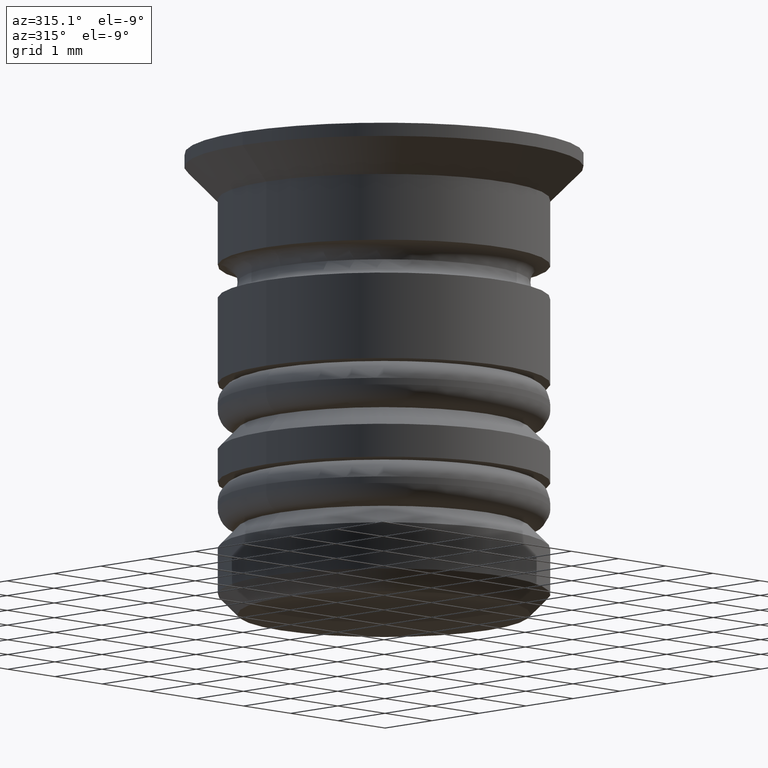
[diagram: clean part render]
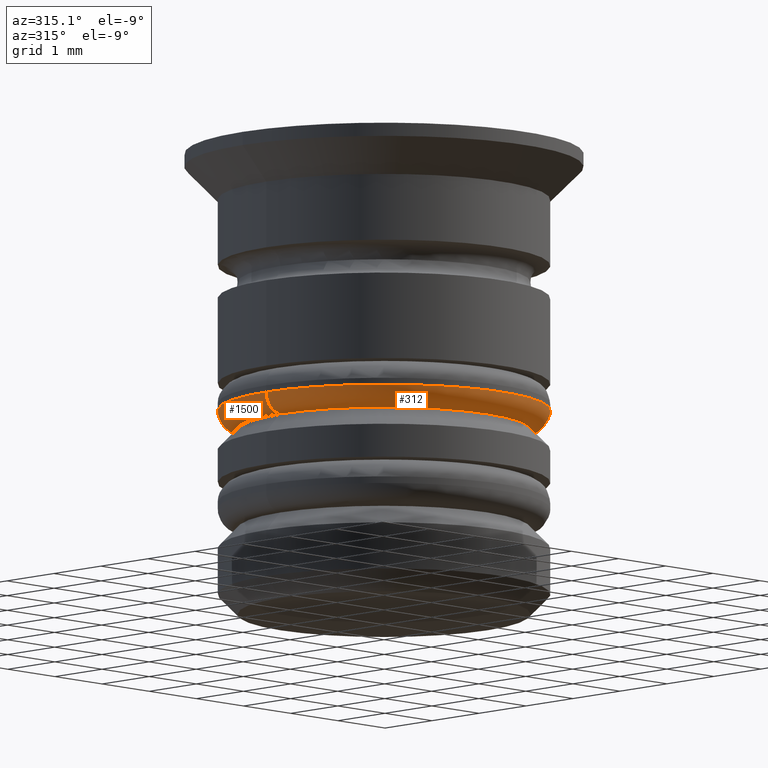
[diagram: same view with one multi-face feature highlighted, each face labeled with its STEP entity id]
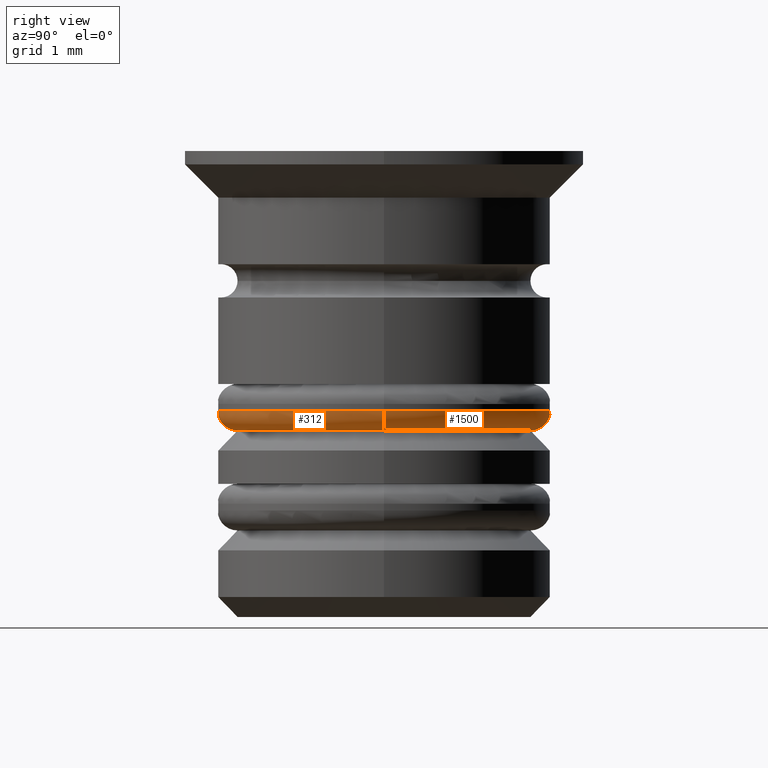
[diagram: same view with one multi-face feature highlighted, each face labeled with its STEP entity id]
A machine part, auxiliary view. The highlighted faces form ONE feature: a constant-radius fillet chain: 2 tangent blend faces with common blend radius 0.3 mm. The faces share edges in the B-rep.
A second angle (right view) of the same feature is appended — it is thin or edge-on in the first view.
Their STEP definitions:
[1] entity #1500 (Torus):
#54 = TOROIDAL_SURFACE ( 'NONE', #977, 2.200000000000001954, 0.2999999999999999889 ) ;
#76 = DIRECTION ( 'NONE',  ( 1.000000000000000000, 0.000000000000000000, 0.000000000000000000 ) ) ;
#101 = EDGE_CURVE ( 'NONE', #315, #788, #308, .T. ) ;
#265 = CIRCLE ( 'NONE', #1271, 0.2999999999999999334 ) ;
#301 = EDGE_CURVE ( 'NONE', #315, #1022, #1076, .T. ) ;
#308 = CIRCLE ( 'NONE', #368, 2.200000000000001954 ) ;
#314 = ORIENTED_EDGE ( 'NONE', *, *, #1418, .F. ) ;
#315 = VERTEX_POINT ( 'NONE', #1340 ) ;
#368 = AXIS2_PLACEMENT_3D ( 'NONE', #1212, #1202, #76 ) ;
#396 = DIRECTION ( 'NONE',  ( 0.000000000000000000, -1.000000000000000000, 0.000000000000000000 ) ) ;
#434 = ORIENTED_EDGE ( 'NONE', *, *, #301, .T. ) ;
#445 = AXIS2_PLACEMENT_3D ( 'NONE', #991, #702, #1695 ) ;
#527 = CARTESIAN_POINT ( 'NONE',  ( 2.200000000000001954, 0.000000000000000000, -3.900000000000010125 ) ) ;
#641 = DIRECTION ( 'NONE',  ( 0.000000000000000000, 0.000000000000000000, -1.000000000000000000 ) ) ;
#695 = CARTESIAN_POINT ( 'NONE',  ( 2.500000000000001776, 0.000000000000000000, -3.900000000000010125 ) ) ;
#702 = DIRECTION ( 'NONE',  ( 0.000000000000000000, 0.000000000000000000, 1.000000000000000000 ) ) ;
#749 = CARTESIAN_POINT ( 'NONE',  ( -2.200000000000001954, 2.694222958124179472E-16, -3.900000000000010125 ) ) ;
#788 = VERTEX_POINT ( 'NONE', #1604 ) ;
#841 = CARTESIAN_POINT ( 'NONE',  ( -2.500000000000001776, 3.061616997868385606E-16, -3.900000000000010125 ) ) ;
#908 = CARTESIAN_POINT ( 'NONE',  ( 0.000000000000000000, 0.000000000000000000, -3.900000000000010125 ) ) ;
#915 = EDGE_CURVE ( 'NONE', #788, #1736, #265, .T. ) ;
#934 = ORIENTED_EDGE ( 'NONE', *, *, #101, .F. ) ;
#977 = AXIS2_PLACEMENT_3D ( 'NONE', #908, #1457, #1312 ) ;
#991 = CARTESIAN_POINT ( 'NONE',  ( 0.000000000000000000, 0.000000000000000000, -3.900000000000010125 ) ) ;
#1022 = VERTEX_POINT ( 'NONE', #841 ) ;
#1033 = FACE_OUTER_BOUND ( 'NONE', #1623, .T. ) ;
#1076 = CIRCLE ( 'NONE', #1255, 0.2999999999999999334 ) ;
#1202 = DIRECTION ( 'NONE',  ( -0.000000000000000000, -0.000000000000000000, -1.000000000000000000 ) ) ;
#1212 = CARTESIAN_POINT ( 'NONE',  ( 0.000000000000000000, 0.000000000000000000, -4.200000000000009948 ) ) ;
#1255 = AXIS2_PLACEMENT_3D ( 'NONE', #749, #1734, #1326 ) ;
#1271 = AXIS2_PLACEMENT_3D ( 'NONE', #527, #396, #641 ) ;
#1312 = DIRECTION ( 'NONE',  ( 1.000000000000000000, 0.000000000000000000, 0.000000000000000000 ) ) ;
#1326 = DIRECTION ( 'NONE',  ( -1.000000000000000000, 1.224646799147353207E-16, 0.000000000000000000 ) ) ;
#1336 = CIRCLE ( 'NONE', #445, 2.500000000000001776 ) ;
#1340 = CARTESIAN_POINT ( 'NONE',  ( -2.200000000000001954, 2.877919977996282293E-16, -4.200000000000009948 ) ) ;
#1418 = EDGE_CURVE ( 'NONE', #1736, #1022, #1336, .T. ) ;
#1457 = DIRECTION ( 'NONE',  ( 0.000000000000000000, 0.000000000000000000, 1.000000000000000000 ) ) ;
#1500 = ADVANCED_FACE ( 'NONE', ( #1033 ), #54, .T. ) ;
#1604 = CARTESIAN_POINT ( 'NONE',  ( 2.200000000000001954, 0.000000000000000000, -4.200000000000009948 ) ) ;
#1623 = EDGE_LOOP ( 'NONE', ( #934, #434, #314, #1795 ) ) ;
#1695 = DIRECTION ( 'NONE',  ( 1.000000000000000000, 0.000000000000000000, 0.000000000000000000 ) ) ;
#1734 = DIRECTION ( 'NONE',  ( 1.224646799147353207E-16, 1.000000000000000000, -0.000000000000000000 ) ) ;
#1736 = VERTEX_POINT ( 'NONE', #695 ) ;
#1795 = ORIENTED_EDGE ( 'NONE', *, *, #915, .F. ) ;
[2] entity #312 (Torus):
#70 = ORIENTED_EDGE ( 'NONE', *, *, #408, .F. ) ;
#135 = EDGE_CURVE ( 'NONE', #788, #315, #713, .T. ) ;
#245 = CIRCLE ( 'NONE', #531, 2.500000000000001776 ) ;
#265 = CIRCLE ( 'NONE', #1271, 0.2999999999999999334 ) ;
#301 = EDGE_CURVE ( 'NONE', #315, #1022, #1076, .T. ) ;
#312 = ADVANCED_FACE ( 'NONE', ( #1591 ), #1758, .T. ) ;
#315 = VERTEX_POINT ( 'NONE', #1340 ) ;
#396 = DIRECTION ( 'NONE',  ( 0.000000000000000000, -1.000000000000000000, 0.000000000000000000 ) ) ;
#408 = EDGE_CURVE ( 'NONE', #1022, #1736, #245, .T. ) ;
#457 = DIRECTION ( 'NONE',  ( 0.000000000000000000, 0.000000000000000000, 1.000000000000000000 ) ) ;
#496 = CARTESIAN_POINT ( 'NONE',  ( 0.000000000000000000, 0.000000000000000000, -3.900000000000010125 ) ) ;
#527 = CARTESIAN_POINT ( 'NONE',  ( 2.200000000000001954, 0.000000000000000000, -3.900000000000010125 ) ) ;
#531 = AXIS2_PLACEMENT_3D ( 'NONE', #496, #457, #605 ) ;
#605 = DIRECTION ( 'NONE',  ( 1.000000000000000000, 0.000000000000000000, 0.000000000000000000 ) ) ;
#641 = DIRECTION ( 'NONE',  ( 0.000000000000000000, 0.000000000000000000, -1.000000000000000000 ) ) ;
#695 = CARTESIAN_POINT ( 'NONE',  ( 2.500000000000001776, 0.000000000000000000, -3.900000000000010125 ) ) ;
#713 = CIRCLE ( 'NONE', #806, 2.200000000000001954 ) ;
#749 = CARTESIAN_POINT ( 'NONE',  ( -2.200000000000001954, 2.694222958124179472E-16, -3.900000000000010125 ) ) ;
#773 = CARTESIAN_POINT ( 'NONE',  ( 0.000000000000000000, 0.000000000000000000, -4.200000000000009948 ) ) ;
#781 = DIRECTION ( 'NONE',  ( 1.000000000000000000, 0.000000000000000000, 0.000000000000000000 ) ) ;
#788 = VERTEX_POINT ( 'NONE', #1604 ) ;
#806 = AXIS2_PLACEMENT_3D ( 'NONE', #773, #929, #781 ) ;
#841 = CARTESIAN_POINT ( 'NONE',  ( -2.500000000000001776, 3.061616997868385606E-16, -3.900000000000010125 ) ) ;
#915 = EDGE_CURVE ( 'NONE', #788, #1736, #265, .T. ) ;
#927 = DIRECTION ( 'NONE',  ( 1.000000000000000000, 0.000000000000000000, 0.000000000000000000 ) ) ;
#929 = DIRECTION ( 'NONE',  ( -0.000000000000000000, -0.000000000000000000, -1.000000000000000000 ) ) ;
#1010 = EDGE_LOOP ( 'NONE', ( #1612, #1599, #1195, #70 ) ) ;
#1022 = VERTEX_POINT ( 'NONE', #841 ) ;
#1032 = CARTESIAN_POINT ( 'NONE',  ( 0.000000000000000000, 0.000000000000000000, -3.900000000000010125 ) ) ;
#1061 = DIRECTION ( 'NONE',  ( 0.000000000000000000, 0.000000000000000000, 1.000000000000000000 ) ) ;
#1076 = CIRCLE ( 'NONE', #1255, 0.2999999999999999334 ) ;
#1195 = ORIENTED_EDGE ( 'NONE', *, *, #915, .T. ) ;
#1196 = AXIS2_PLACEMENT_3D ( 'NONE', #1032, #1061, #927 ) ;
#1255 = AXIS2_PLACEMENT_3D ( 'NONE', #749, #1734, #1326 ) ;
#1271 = AXIS2_PLACEMENT_3D ( 'NONE', #527, #396, #641 ) ;
#1326 = DIRECTION ( 'NONE',  ( -1.000000000000000000, 1.224646799147353207E-16, 0.000000000000000000 ) ) ;
#1340 = CARTESIAN_POINT ( 'NONE',  ( -2.200000000000001954, 2.877919977996282293E-16, -4.200000000000009948 ) ) ;
#1591 = FACE_OUTER_BOUND ( 'NONE', #1010, .T. ) ;
#1599 = ORIENTED_EDGE ( 'NONE', *, *, #135, .F. ) ;
#1604 = CARTESIAN_POINT ( 'NONE',  ( 2.200000000000001954, 0.000000000000000000, -4.200000000000009948 ) ) ;
#1612 = ORIENTED_EDGE ( 'NONE', *, *, #301, .F. ) ;
#1734 = DIRECTION ( 'NONE',  ( 1.224646799147353207E-16, 1.000000000000000000, -0.000000000000000000 ) ) ;
#1736 = VERTEX_POINT ( 'NONE', #695 ) ;
#1758 = TOROIDAL_SURFACE ( 'NONE', #1196, 2.200000000000001954, 0.2999999999999999889 ) ;